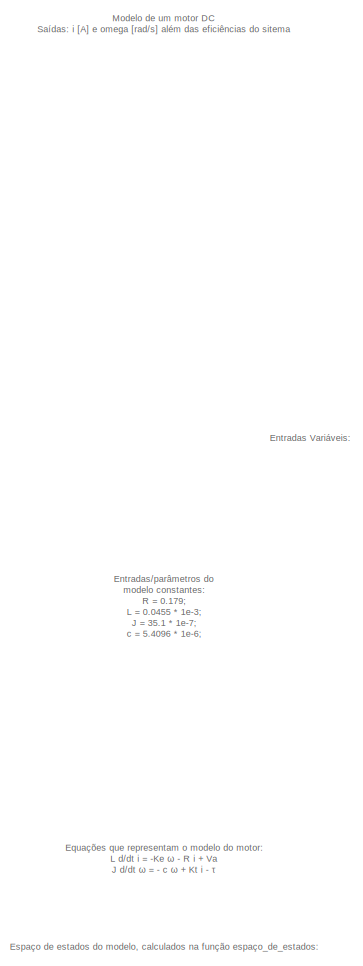
[diagram: root canvas - part 1/2, left side, full height]
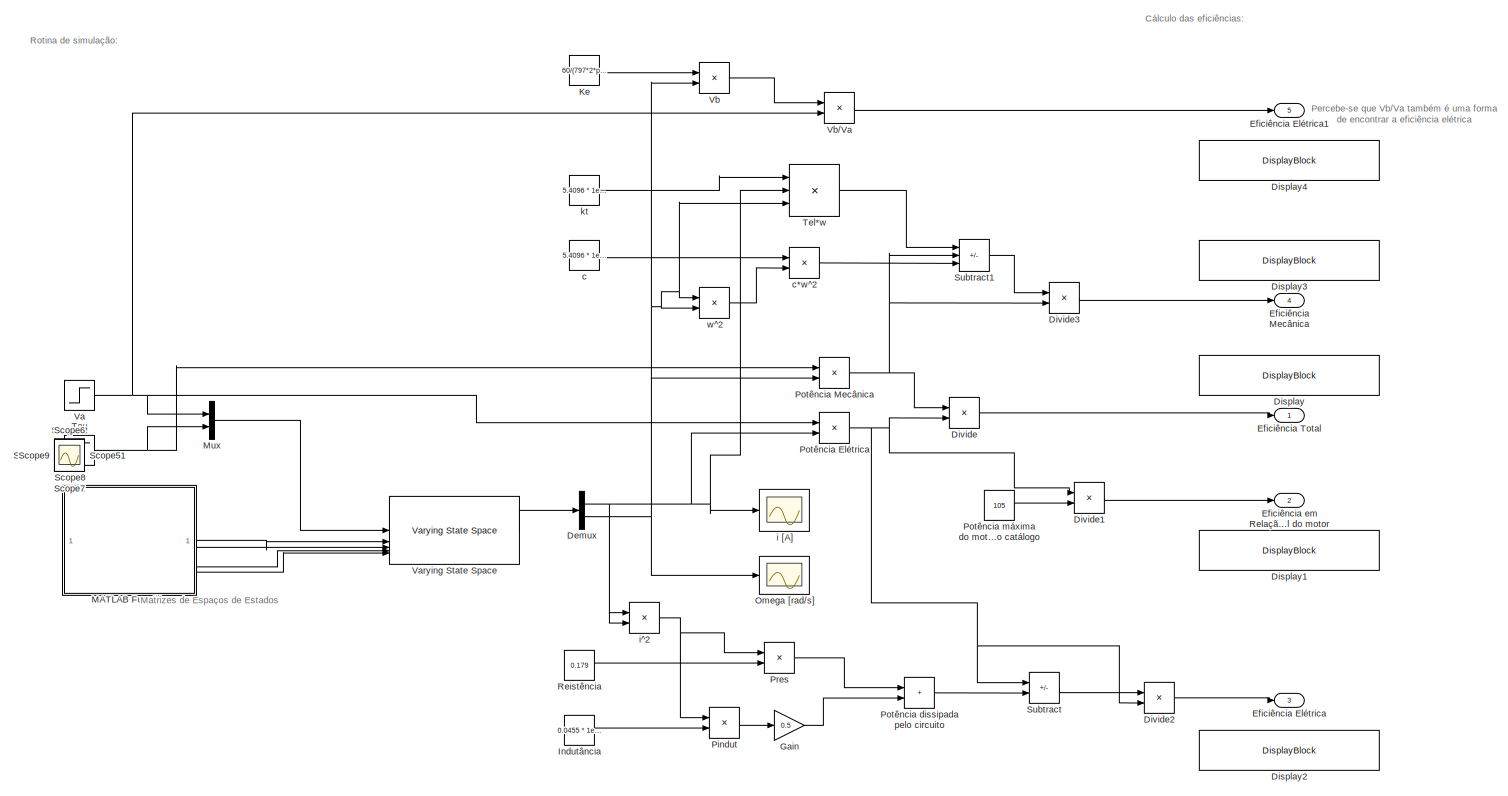
[diagram: root canvas - part 2/2, most of the canvas]
MODEL slx_b883f8f8f58d
KIND model
CONFIG AbsTol = auto
CONFIG EnableMultiTasking = off
CONFIG FixedStep = auto
CONFIG MaxStep = auto
CONFIG MinStep = auto
CONFIG RelTol = 1e-3
CONFIG SampleTimeConstraint = Unconstrained
CONFIG SolverName = VariableStepAuto
CONFIG StartTime = 0.0
CONFIG StopTime = 30
BLOCK [Demux] Demux
  Outputs = 2
BLOCK [DisplayBlock] Display
  LabelPosition = Hide
  Transparency = 1
BLOCK [DisplayBlock] Display1
  LabelPosition = Hide
  Transparency = 1
BLOCK [DisplayBlock] Display2
  LabelPosition = Hide
  Transparency = 1
BLOCK [DisplayBlock] Display3
  LabelPosition = Hide
  Transparency = 1
BLOCK [DisplayBlock] Display4
  LabelPosition = Hide
  Transparency = 1
BLOCK [Product] Divide
  Inputs = */
BLOCK [Product] Divide1
  Inputs = */
BLOCK [Product] Divide2
  Inputs = */
BLOCK [Product] Divide3
  Inputs = */
BLOCK [Outport] Eficiência Elétrica
  Port = 3
BLOCK [Outport] Eficiência Elétrica1
  Port = 5
BLOCK [Outport] Eficiência Mecânica
  Port = 4
BLOCK [Outport] Eficiência Total
BLOCK [Outport] Eficiência em Relação a máxima potência possvel do motor
  Port = 2
BLOCK [Gain] Gain
  Gain = 0.5
BLOCK [Constant] Indutância
  Value = 0.0455 * 1e-3
BLOCK [Constant] Ke
  Value = 60/(797*2*pi)
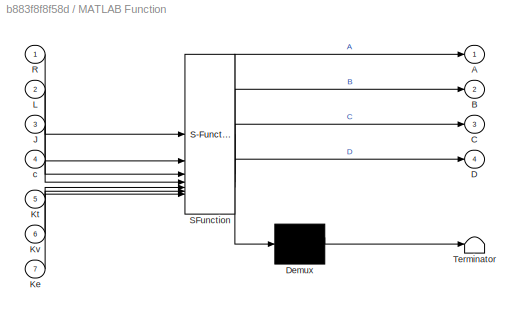
BLOCK [SubSystem] MATLAB Function
  ErrorFcn = Stateflow.Translate.translate
  LibrarySourceBlock = simulink/User-Defined\nFunctions/MATLAB Function
  PermitHierarchicalResolution = ExplicitOnly
  SFBlockType = MATLAB Function
  TreatAsAtomicUnit = on
BLOCK [Demux] MATLAB Function/ Demux 
  Outputs = 1
BLOCK [S-Function] MATLAB Function/ SFunction 
  EnableBusSupport = on
  FunctionName = sf_sfun
  PortCounts = [7 5]
  SFcnIsStateOwnerBlock = off
  SFunctionDeploymentMode = off
  Tag = Stateflow S-Function 2
BLOCK [Terminator] MATLAB Function/ Terminator 
BLOCK [Outport] MATLAB Function/A
BLOCK [Outport] MATLAB Function/B
  Port = 2
BLOCK [Outport] MATLAB Function/C
  Port = 3
BLOCK [Outport] MATLAB Function/D
  Port = 4
BLOCK [Inport] MATLAB Function/J
  Port = 3
BLOCK [Inport] MATLAB Function/Ke
  Port = 7
BLOCK [Inport] MATLAB Function/Kt
  Port = 5
BLOCK [Inport] MATLAB Function/Kv
  Port = 6
BLOCK [Inport] MATLAB Function/L
  Port = 2
BLOCK [Inport] MATLAB Function/R
BLOCK [Inport] MATLAB Function/c
  Port = 4
BLOCK [Mux] Mux
  DisplayOption = bar
  Inputs = 2
BLOCK [Scope] Omega [rad//s]
  Floating = off
  NumInputPorts = 1
  ScopeSpecificationString = Simulink.scopes.TimeScopeBlockCfg('CurrentConfiguration', extmgr.ConfigurationSet(extmgr.Configuration('Core','General UI',true),extmgr.Configuration('Core','Source UI',true),extmgr.Configuration('Sources','WiredSimulink',true,'DataLoggingVariableName','ScopeData5'),extmgr.Configuration('Visuals','Time Domain',true,'SerializedDisplays',{struct('MinYLimReal','-103.63353','MaxYLimReal','932.70179','...<+1669ch>
BLOCK [Product] Pindut
BLOCK [Product] Potência Elétrica
BLOCK [Product] Potência Mecânica
BLOCK [Sum] Potência dissipada pelo circuito
  IconShape = rectangular
BLOCK [Constant] Potência máxima do motor pelo catálogo
  Value = 105
BLOCK [Product] Pres
BLOCK [Constant] Reistência
  Value = 0.179
BLOCK [Scope] Scope
  Floating = off
  IOType = viewer
  NumInputPorts = 1
  ScopeSpecificationString = Simulink.scopes.TimeScopeBlockCfg('CurrentConfiguration', extmgr.ConfigurationSet(extmgr.Configuration('Core','General UI',true),extmgr.Configuration('Core','Source UI',true),extmgr.Configuration('Sources','WiredSimulink',true,'DataLoggingVariableName','ScopeData6'),extmgr.Configuration('Visuals','Time Domain',true,'SerializedDisplays',{struct('MinYLimReal','-2.52329','MaxYLimReal','22.70963','YLa...<+1369ch>
BLOCK [Scope] Scope10
  Floating = off
  IOType = viewer
  NumInputPorts = 1
  ScopeSpecificationString = Simulink.scopes.TimeScopeBlockCfg('CurrentConfiguration', extmgr.ConfigurationSet(extmgr.Configuration('Core','General UI',true),extmgr.Configuration('Core','Source UI',true),extmgr.Configuration('Sources','WiredSimulink',true,'DataLoggingVariableName','ScopeData1'),extmgr.Configuration('Visuals','Time Domain',true,'SerializedDisplays',{struct('MinYLimReal','0.01048','MaxYLimReal','1.10978','YLabe...<+1364ch>
BLOCK [Scope] Scope11
  Floating = off
  IOType = viewer
  NumInputPorts = 1
  ScopeSpecificationString = Simulink.scopes.TimeScopeBlockCfg('CurrentConfiguration', extmgr.ConfigurationSet(extmgr.Configuration('Core','General UI',true),extmgr.Configuration('Core','Source UI',true),extmgr.Configuration('Sources','WiredSimulink',true,'DataLoggingVariableName','ScopeData2'),extmgr.Configuration('Visuals','Time Domain',true,'SerializedDisplays',{struct('MinYLimReal','-0.12417','MaxYLimReal','1.11752','YLab...<+1364ch>
BLOCK [Scope] Scope12
  Floating = off
  IOType = viewer
  NumInputPorts = 1
  ScopeSpecificationString = Simulink.scopes.TimeScopeBlockCfg('CurrentConfiguration', extmgr.ConfigurationSet(extmgr.Configuration('Core','General UI',true),extmgr.Configuration('Core','Source UI',true),extmgr.Configuration('Sources','WiredSimulink',true,'DataLoggingVariableName','ScopeData3'),extmgr.Configuration('Visuals','Time Domain',true,'SerializedDisplays',{struct('MinYLimReal','0.94985','MaxYLimReal','0.95877','YLabe...<+1364ch>
BLOCK [Scope] Scope2
  Floating = off
  IOType = viewer
  NumInputPorts = 1
  ScopeSpecificationString = Simulink.scopes.TimeScopeBlockCfg('CurrentConfiguration', extmgr.ConfigurationSet(extmgr.Configuration('Core','General UI',true),extmgr.Configuration('Core','Source UI',true),extmgr.Configuration('Sources','WiredSimulink',true,'DataLoggingVariableName','ScopeData2'),extmgr.Configuration('Visuals','Time Domain',true,'SerializedDisplays',{struct('MinYLimReal','9.00000','MaxYLimReal','11.00000','YLab...<+1397ch>
BLOCK [Scope] Scope3
  Floating = off
  IOType = viewer
  NumInputPorts = 1
  ScopeSpecificationString = Simulink.scopes.TimeScopeBlockCfg('CurrentConfiguration', extmgr.ConfigurationSet(extmgr.Configuration('Core','General UI',true),extmgr.Configuration('Core','Source UI',true),extmgr.Configuration('Sources','WiredSimulink',true,'DataLoggingVariableName','ScopeData3'),extmgr.Configuration('Visuals','Time Domain',true,'SerializedDisplays',{struct('MinYLimReal','-0.01137','MaxYLimReal','0.10237','YLab...<+1398ch>
BLOCK [Scope] Scope4
  Floating = off
  IOType = viewer
  NumInputPorts = 1
  ScopeSpecificationString = Simulink.scopes.TimeScopeBlockCfg('CurrentConfiguration', extmgr.ConfigurationSet(extmgr.Configuration('Core','General UI',true),extmgr.Configuration('Core','Source UI',true),extmgr.Configuration('Sources','WiredSimulink',true,'DataLoggingVariableName','ScopeData1'),extmgr.Configuration('Visuals','Time Domain',true,'SerializedDisplays',{struct('MinYLimReal','-1365.00000','MaxYLimReal','12285.00000...<+1385ch>
BLOCK [Scope] Scope5
  Floating = off
  IOType = viewer
  NumInputPorts = 1
  ScopeSpecificationString = Simulink.scopes.TimeScopeBlockCfg('CurrentConfiguration', extmgr.ConfigurationSet(extmgr.Configuration('Core','General UI',true),extmgr.Configuration('Core','Source UI',true),extmgr.Configuration('Sources','WiredSimulink',true,'DataLoggingVariableName','ScopeData2'),extmgr.Configuration('Visuals','Time Domain',true,'SerializedDisplays',{struct('MinYLimReal','-1365.00000','MaxYLimReal','12285.00000...<+1385ch>
BLOCK [Scope] Scope6
  Floating = off
  IOType = viewer
  NumInputPorts = 1
  ScopeSpecificationString = Simulink.scopes.TimeScopeBlockCfg('CurrentConfiguration', extmgr.ConfigurationSet(extmgr.Configuration('Core','General UI',true),extmgr.Configuration('Core','Source UI',true),extmgr.Configuration('Sources','WiredSimulink',true,'DataLoggingVariableName','ScopeData3'),extmgr.Configuration('Visuals','Time Domain',true,'SerializedDisplays',{struct('MinYLimReal','-10.00000','MaxYLimReal','10.00000','YL...<+1365ch>
BLOCK [Scope] Scope7
  Floating = off
  IOType = viewer
  NumInputPorts = 1
  ScopeSpecificationString = Simulink.scopes.TimeScopeBlockCfg('CurrentConfiguration', extmgr.ConfigurationSet(extmgr.Configuration('Core','General UI',true),extmgr.Configuration('Core','Source UI',true),extmgr.Configuration('Sources','WiredSimulink',true,'DataLoggingVariableName','ScopeData1'),extmgr.Configuration('Visuals','Time Domain',true,'SerializedDisplays',{struct('MinYLimReal','-0.12504','MaxYLimReal','1.12538','YLab...<+1359ch>
BLOCK [Scope] Scope8
  Floating = off
  IOType = viewer
  NumInputPorts = 1
  ScopeSpecificationString = Simulink.scopes.TimeScopeBlockCfg('CurrentConfiguration', extmgr.ConfigurationSet(extmgr.Configuration('Core','General UI',true),extmgr.Configuration('Core','Source UI',true),extmgr.Configuration('Sources','WiredSimulink',true,'DataLoggingVariableName','ScopeData1'),extmgr.Configuration('Visuals','Time Domain',true,'SerializedDisplays',{struct('MinYLimReal','-2.83783','MaxYLimReal','25.54044','YLa...<+1363ch>
BLOCK [Scope] Scope9
  Floating = off
  IOType = viewer
  NumInputPorts = 1
  ScopeSpecificationString = Simulink.scopes.TimeScopeBlockCfg('CurrentConfiguration', extmgr.ConfigurationSet(extmgr.Configuration('Core','General UI',true),extmgr.Configuration('Core','Source UI',true),extmgr.Configuration('Sources','WiredSimulink',true,'DataLoggingVariableName','ScopeData2'),extmgr.Configuration('Visuals','Time Domain',true,'SerializedDisplays',{struct('MinYLimReal','-2.52329','MaxYLimReal','22.70963','YLa...<+1363ch>
BLOCK [Sum] Subtract
  IconShape = rectangular
  Inputs = +-
BLOCK [Sum] Subtract1
  IconShape = rectangular
  Inputs = ++-
BLOCK [Step] Tau
  After = 0.091
  SampleTime = 10
  Time = 10
BLOCK [Product] Tel*w
  Inputs = 3
BLOCK [Step] Va
  After = 10
  Before = 10
  SampleTime = 0
  Time = 0
BLOCK [Reference] Varying State Space  REF=cstblocks/Linear Parameter Varying/Varying State Space
  SourceBlock = cstblocks/Linear Parameter Varying/Varying State Space
  SourceType = Varying State Space
BLOCK [Product] Vb
BLOCK [Product] Vb//Va
  Inputs = */
BLOCK [Constant] c
  Value = 5.4096 * 1e-6
BLOCK [Product] c*w^2
BLOCK [Scope] i [A]
  Floating = off
  NumInputPorts = 1
  ScopeSpecificationString = Simulink.scopes.TimeScopeBlockCfg('CurrentConfiguration', extmgr.ConfigurationSet(extmgr.Configuration('Core','General UI',true),extmgr.Configuration('Core','Source UI',true),extmgr.Configuration('Sources','WiredSimulink',true,'DataLoggingVariableName','ScopeData4'),extmgr.Configuration('Visuals','Time Domain',true,'SerializedDisplays',{struct('MinYLimReal','-6.14162','MaxYLimReal','55.27456','YLa...<+1670ch>
BLOCK [Product] i^2
BLOCK [Constant] kt
  Value = 5.4096 * 1e-6
BLOCK [Product] w^2
ANNOTATION (root): Percebe-se que Vb/Va também é uma forma de encontrar a eficiência elétrica
ANNOTATION (root): Equações que representam o modelo do motor: L d/dt i = -Ke ω - R i + Va J d/dt ω = - c ω + Kt i - τ
ANNOTATION (root): Espaço de estados do modelo, calculados na função espaço_de_estados:
ANNOTATION (root): Entradas Variáveis:
ANNOTATION (root): Entradas/parâmetros do modelo constantes: R = 0.179; L = 0.0455 * 1e-3; J = 35.1 * 1e-7; c = 5.4096 * 1e-6; Kt = 12 * 1e-3; Kv = (797 * 2 * pi) / 60; Ke = 1/Kv; Unidades de medidas no SI
ANNOTATION (root): Rotina de simulação:
ANNOTATION (root): Cálculo das eficiências:
ANNOTATION (root): Modelo de um motor DC Saídas: i [A] e omega [rad/s] além das eficiências do sitema
ANNOTATION (root): Matrizes de Espaços de Estados
NET Demux:1 -> Potência Elétrica:2, Tel*w:2, i [A]:1, i^2:1, i^2:2
NET Demux:2 -> Omega [rad//s]:1, Potência Mecânica:2, Tel*w:3, Vb:2, w^2:1, w^2:2
LINE Divide1:1 -> Eficiência em Relação a máxima potência possvel do motor:1
LINE Divide2:1 -> Eficiência Elétrica:1
LINE Divide3:1 -> Eficiência Mecânica:1
LINE Divide:1 -> Eficiência Total:1
LINE Gain:1 -> Potência dissipada pelo circuito:2
LINE Indutância:1 -> Pindut:2
LINE Ke:1 -> Vb:1
LINE MATLAB Function:1 -> Varying State Space:2
LINE MATLAB Function:2 -> Varying State Space:3
LINE MATLAB Function:3 -> Varying State Space:4
LINE MATLAB Function:4 -> Varying State Space:5
LINE Mux:1 -> Varying State Space:1
LINE Pindut:1 -> Gain:1
NET Potência Elétrica:1 -> Divide1:1, Divide2:2, Divide:2, Subtract:1
NET Potência Mecânica:1 -> Divide3:2, Divide:1, Subtract1:2
LINE Potência dissipada pelo circuito:1 -> Subtract:2
LINE Potência máxima do motor pelo catálogo:1 -> Divide1:2
LINE Pres:1 -> Potência dissipada pelo circuito:1
LINE Reistência:1 -> Pres:2
LINE Subtract1:1 -> Divide3:1
LINE Subtract:1 -> Divide2:1
NET Tau:1 -> Mux:2, Potência Mecânica:1
LINE Tel*w:1 -> Subtract1:1
NET Va:1 -> Mux:1, Potência Elétrica:1, Vb//Va:2
LINE Varying State Space:1 -> Demux:1
LINE Vb//Va:1 -> Eficiência Elétrica1:1
LINE Vb:1 -> Vb//Va:1
LINE c*w^2:1 -> Subtract1:3
LINE c:1 -> c*w^2:1
NET i^2:1 -> Pindut:1, Pres:1
LINE kt:1 -> Tel*w:1
LINE w^2:1 -> c*w^2:2
note: NET lines group one-source signal fan-out (src -> all destinations, sorted); 1:1 wires keep LINE
CHART MATLAB Function states=1 transitions=1
  STATE_LABEL 'eML_blk_kernel()'
  STATE_LABEL 'SCRIPT:\nfunction [A, B, C, D] =  espaco_de_estados(R, L, J, c, Kt, Kv, Ke)\n\n\n\nR = 0.179;                  % Ohms\nL = 0.0455 * 1e-3;          % mH --> H\nJ = 35.1 * 1e-7;            % gcm2 --> Kgm2\nc = 5.4096 * 1e-6;          % rpm/mNm --> Hz/Nm --> (rad/s)/Nm\nKt = 12 * 1e-3;             % mNm/A --> Nm/A\nKv = (797 * 2 * pi) / 60;   % rpmV/V --> HzV/V --> (rad/s)V/V\nKe = 1/Kv; \n\n\nA = [ (-R/L) (-Ke/L)...<+106ch>'
CHART  states=0 transitions=0
